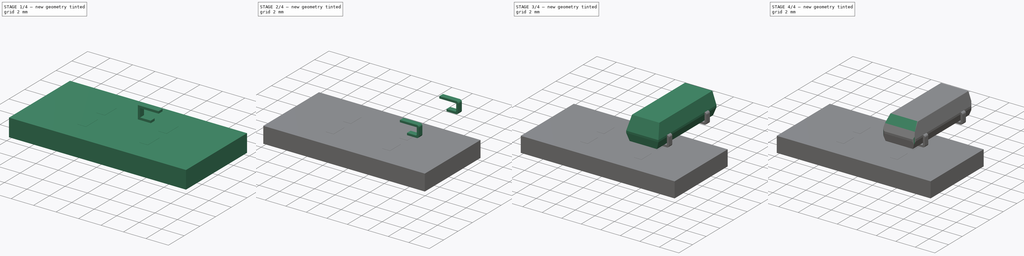
[diagram: build sequence overview — one tinted view per stage of 4, left to right]
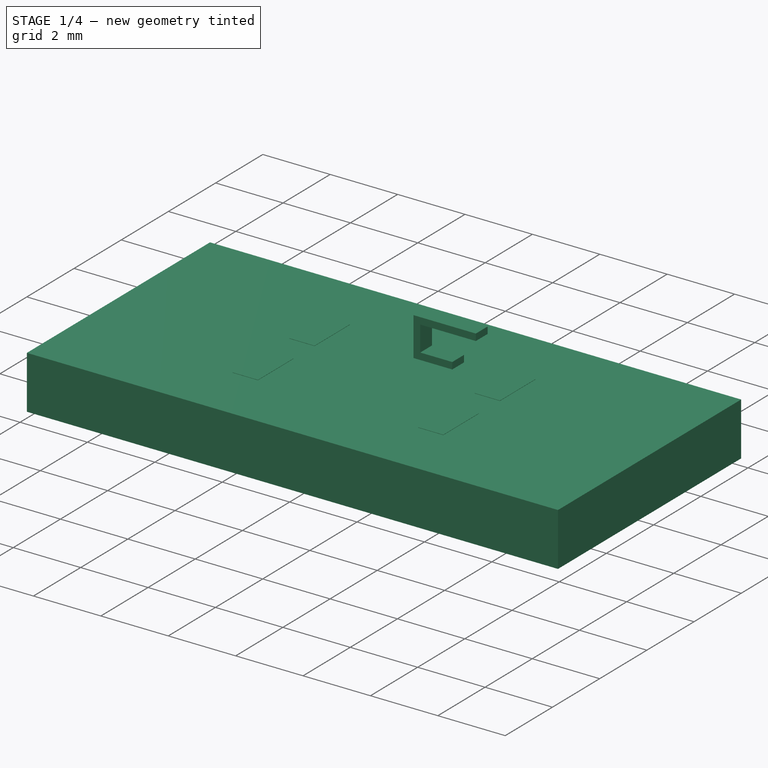
[diagram: stage 1 of 4 — iso view after this stage's code; geometry added in this stage tinted green]
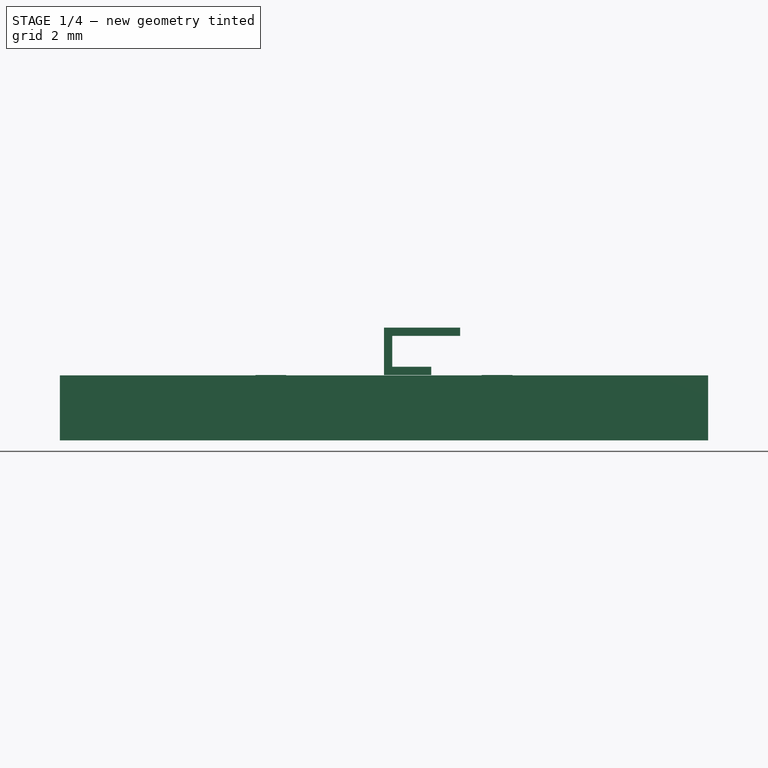
[diagram: stage 1 of 4 — front view after this stage's code; geometry added in this stage tinted green]
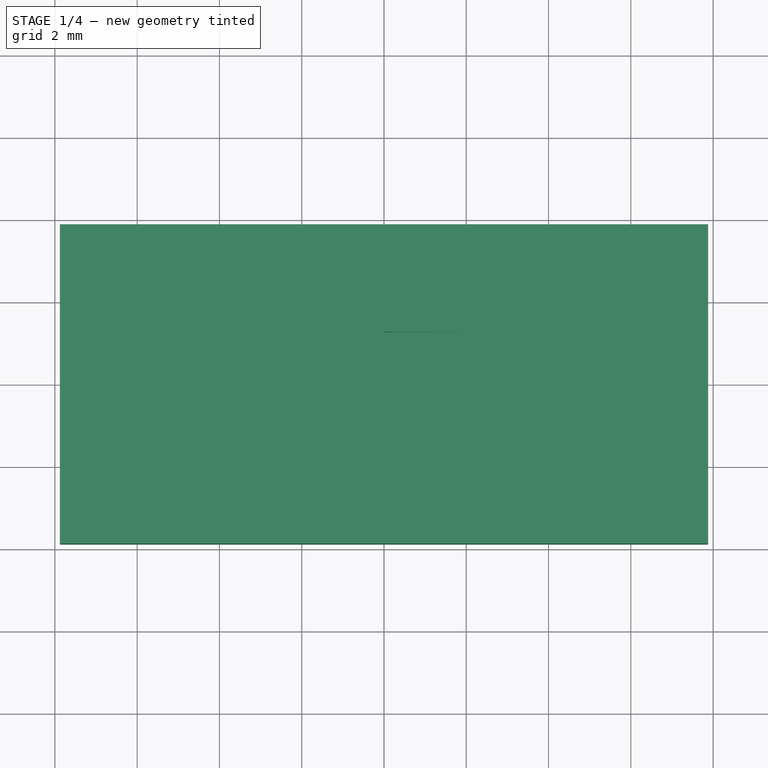
[diagram: stage 1 of 4 — top view after this stage's code; geometry added in this stage tinted green]
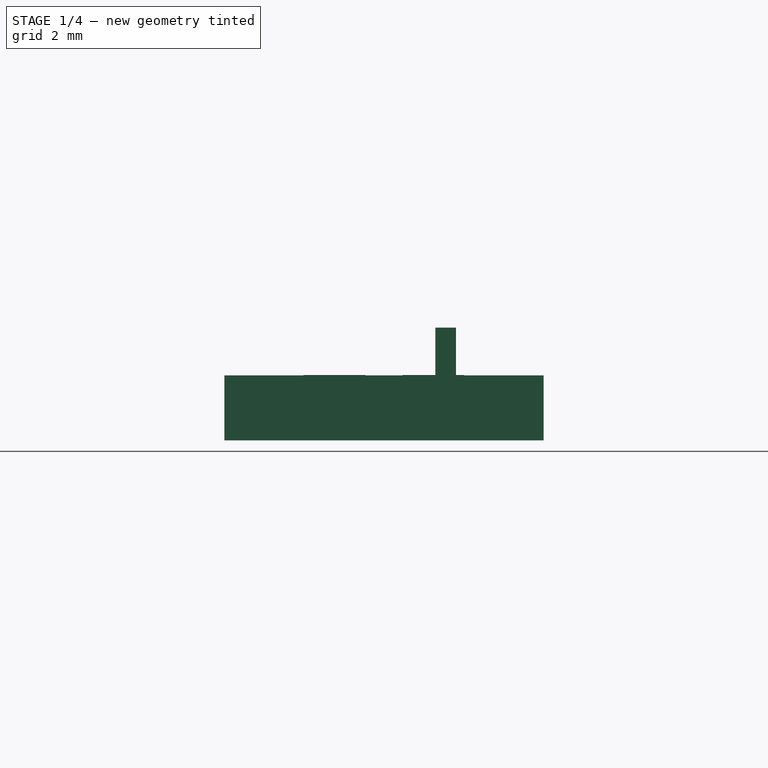
[diagram: stage 1 of 4 — right view after this stage's code; geometry added in this stage tinted green]
FCSTD DOCUMENT  (FreeCAD 0.19R24276 (Git))
Label: Oscillator_SMD_SeikoEpson_SPT2AF
License: All rights reserved
LicenseURL: http://en.wikipedia.org/wiki/All_rights_reserved
objects: Part::FeaturePython×6, Part::Fillet×3, Sketcher::SketchObject×2, Part::Chamfer×2, PartDesign::Pad×1, PartDesign::Body×1, Part::Extrusion×1, Part::Mirroring×1, App::DocumentObjectGroup×1, Part::Feature×1
note: 19 computed .brp shape members not serialized (recipe doc carries the construction recipe); baked Part::Feature solids carry a one-line shape summary decoded from their .brp

FEATURE [Sketcher::SketchObject] Sketch001  label="Sketch_pin"
  AttachmentOffset = pos=(0,0,-1.5) rot=(0,0,1;0rad)
  FullyConstrained = false
  MapMode = 5
  Placement = pos=(0,1.5,3e-16) rot=(1,0,0;1.5708rad)
  Support = -> [XZ_Plane]
  sketch-geometry (8):
    g0: LineSegment StartX=0 StartY=1.15 StartZ=0 EndX=1.85 EndY=1.15 EndZ=0
    g1: LineSegment StartX=0 StartY=1.15 StartZ=0 EndX=0 EndY=0 EndZ=0
    g2: LineSegment StartX=0 StartY=0 StartZ=0 EndX=1.15 EndY=0 EndZ=0
    g3: LineSegment StartX=1.15 StartY=0 StartZ=0 EndX=1.15 EndY=0.2 EndZ=0
    g4: LineSegment StartX=1.15 StartY=0.2 StartZ=0 EndX=0.2 EndY=0.2 EndZ=0
    g5: LineSegment StartX=0.2 StartY=0.2 StartZ=0 EndX=0.2 EndY=0.95 EndZ=0
    g6: LineSegment StartX=0.2 StartY=0.95 StartZ=0 EndX=1.85 EndY=0.95 EndZ=0
    g7: LineSegment StartX=1.85 StartY=0.95 StartZ=0 EndX=1.85 EndY=1.15 EndZ=0
  constraints (23):
    c: PointOnObject(g0,g-2)
    c: Horizontal(g0)
    c: Coincident(g1,g0)
    c: Coincident(g1,g-1)
    c: Coincident(g2,g1)
    c: PointOnObject(g2,g-1)
    c: Vertical(g3)
    c: Coincident(g4,g3)
    c: Horizontal(g4)
    c: Coincident(g5,g4)
    c: Vertical(g5)
    c: Horizontal(g6)
    c: Coincident(g7,g6)
    c: Coincident(g7,g0)
    c: Vertical(g7)
    c: DistanceY(g3,g3) = 0.2
    c: Coincident(g6,g5)
    c: DistanceX(g1,g5) = 0.2
    c: DistanceY(g7,g7) = 0.2
    c: DistanceX(g0,g0) = 1.85
    c: Coincident(g2,g3)
    c: DistanceX(g2,g2) = 1.15
    c: DistanceY(g1,g1) = 1.15
FEATURE [PartDesign::Body] Body
  Group = -> [Sketch,Pad,Sketch001]
  Origin = -> Origin
  Tip = -> Pad
FEATURE [Part::Extrusion] Extrude  label="Extrude_pin"
  Base = -> Sketch001
  Dir = (0,-1,-2e-16)
  DirMode = 2
  FaceMakerClass = Part::FaceMakerBullseye
  LengthFwd = 0.5
  LengthRev = 0
  Solid = true
  Symmetric = true
FEATURE [Part::FeaturePython] FCrtYd_lines  label="FCrtYd"  # a2plus imported part (geometry in sourceFile) (typed FeaturePython)
  fixedPosition = true
FEATURE [Part::FeaturePython] FFab_lines  label="FFab"  # a2plus imported part (geometry in sourceFile) (typed FeaturePython)
  fixedPosition = true
FEATURE [Part::FeaturePython] Filk_lines  label="FrontSilk"  # a2plus imported part (geometry in sourceFile) (typed FeaturePython)
  fixedPosition = true
FEATURE [Part::FeaturePython] TopPads  # a2plus imported part (geometry in sourceFile) (typed FeaturePython)
  fixedPosition = true
FEATURE [Part::FeaturePython] newPCB  label="Pcb"  # a2plus imported part (geometry in sourceFile) (typed FeaturePython)
  fixedPosition = true
FEATURE [App::DocumentObjectGroup] _module_fp
  Group = -> [FCrtYd_lines,FFab_lines,Filk_lines,TopPads,newPCB]
FEATURE [Part::Feature] Shape  label="Oscillator_SMD_SeikoEpson_SPT2AF"
  shape: bbox 8.5 x 3.7 x 2.5 mm, 70 faces (baked)
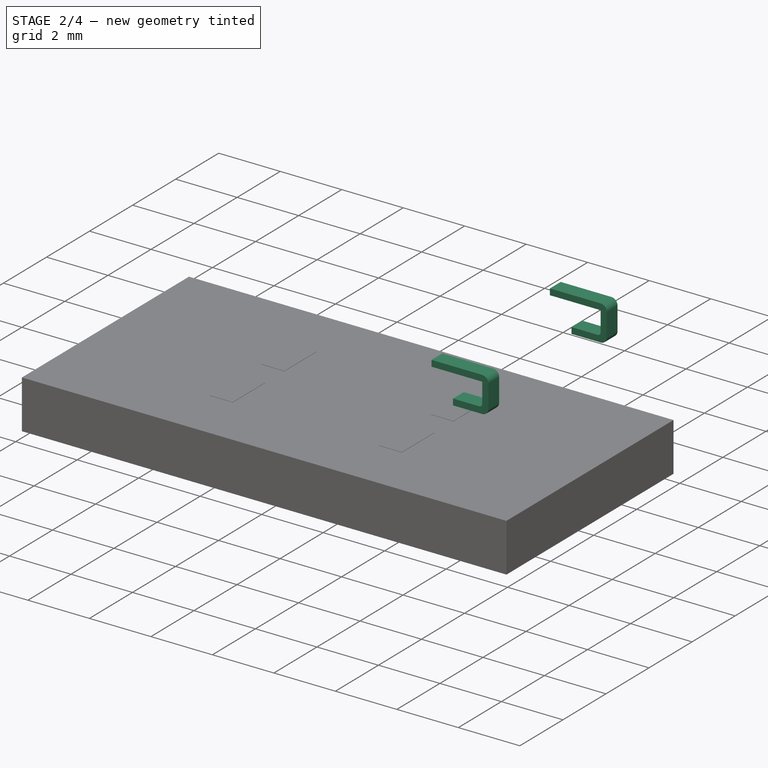
[diagram: stage 2 of 4 — iso view after this stage's code; geometry added in this stage tinted green]
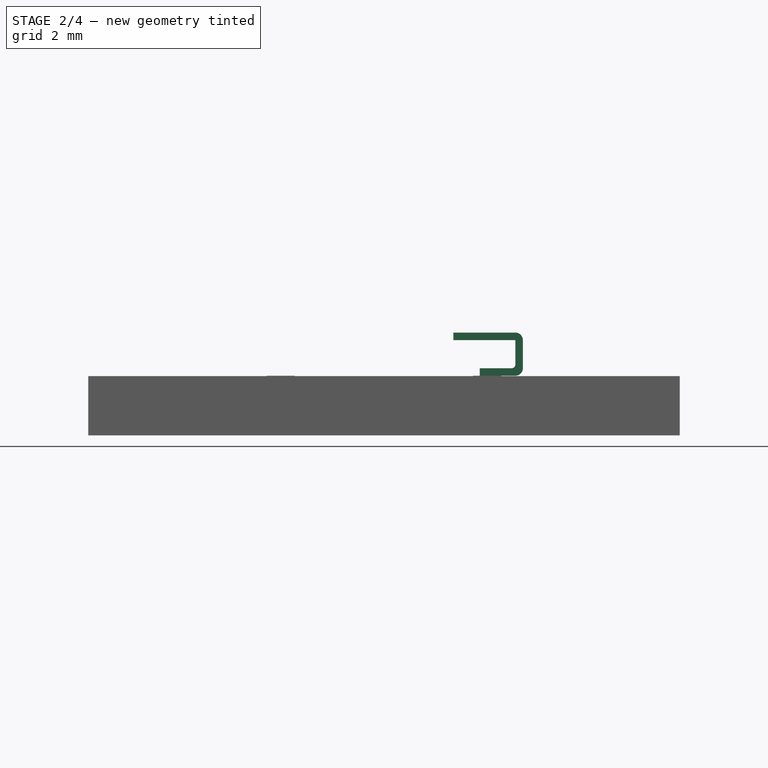
[diagram: stage 2 of 4 — front view after this stage's code; geometry added in this stage tinted green]
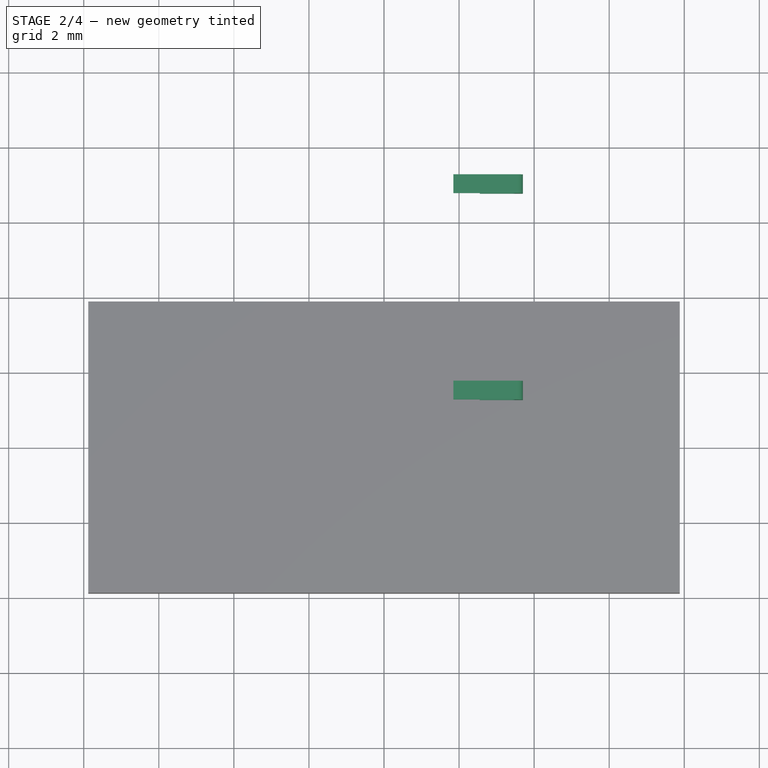
[diagram: stage 2 of 4 — top view after this stage's code; geometry added in this stage tinted green]
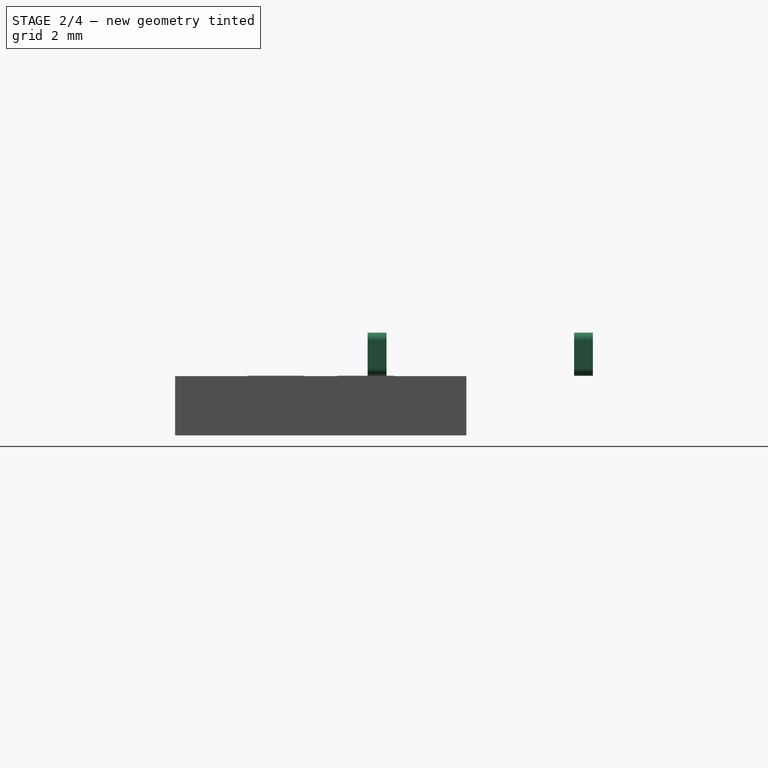
[diagram: stage 2 of 4 — right view after this stage's code; geometry added in this stage tinted green]
FEATURE [Part::Fillet] Fillet002  label="Fillet_pin"
  Base = -> Extrude
  Edges = 3 edges: [Edge1 r=0.2,Edge11 r=0.1,Edge20 r=0.2]
FEATURE [Part::FeaturePython] Array  label="Array_pin"  # Draft array (typed FeaturePython)
  Angle = 360
  ArrayType = 0
  Axis = (0,0,1)
  Base = -> Fillet002
  Center = (0,0,0)
  Fuse = false
  IntervalAxis = (0,0,0)
  IntervalX = (1,0,0)
  IntervalY = (0,5.5,0)
  IntervalZ = (0,0,1)
  NumberPolar = 1
  NumberX = 1
  NumberY = 2
  NumberZ = 1
FEATURE [Part::Mirroring] Part__Mirroring  label="Mirror_pins"
  Base = (1.78814e-07,4.25,0.575001)
  Normal = (1,0,-1.19209e-07)
  Placement = pos=(3.7,0,0) rot=(0,0,1;0rad)
  Source = -> Array
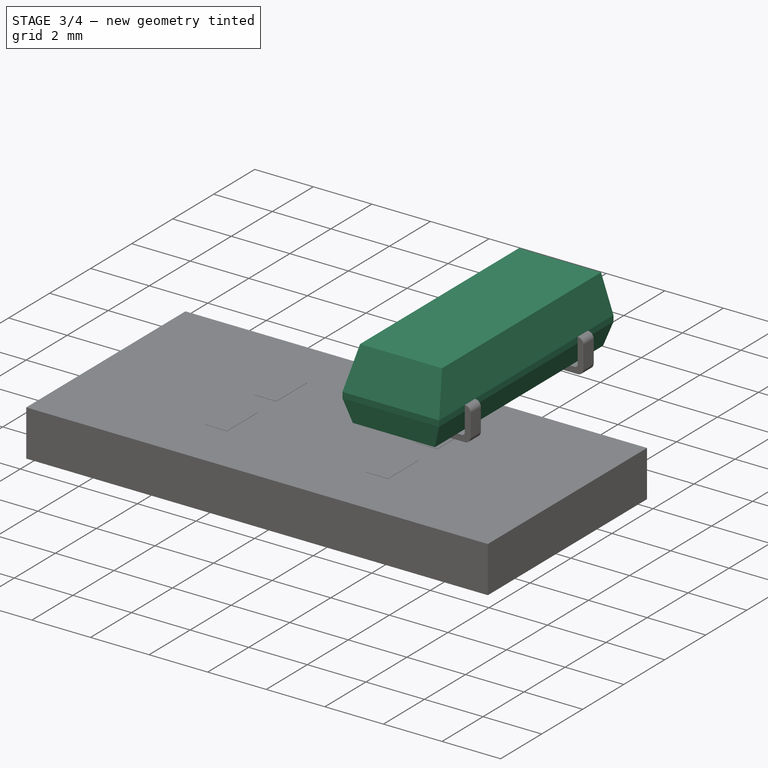
[diagram: stage 3 of 4 — iso view after this stage's code; geometry added in this stage tinted green]
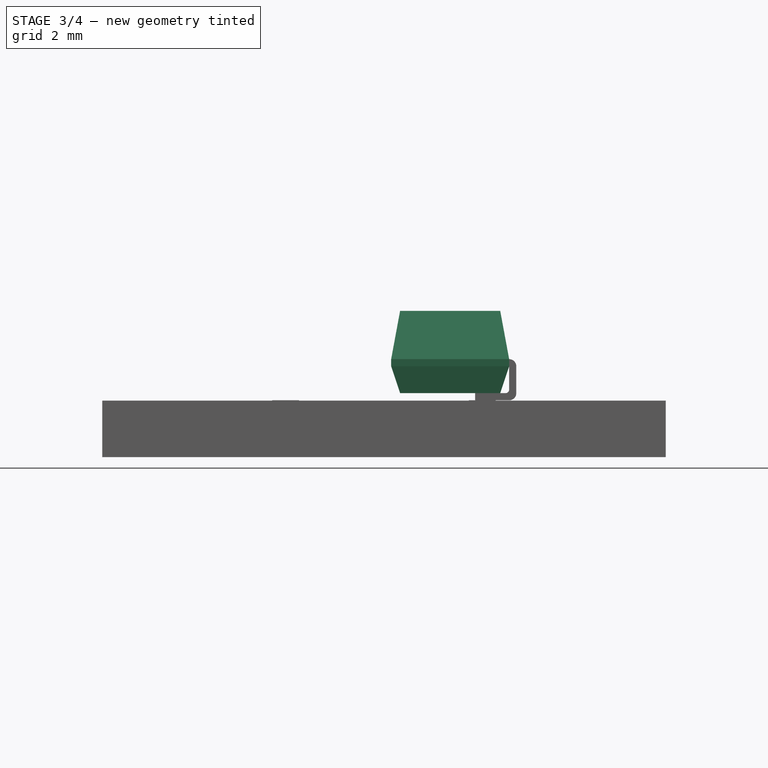
[diagram: stage 3 of 4 — front view after this stage's code; geometry added in this stage tinted green]
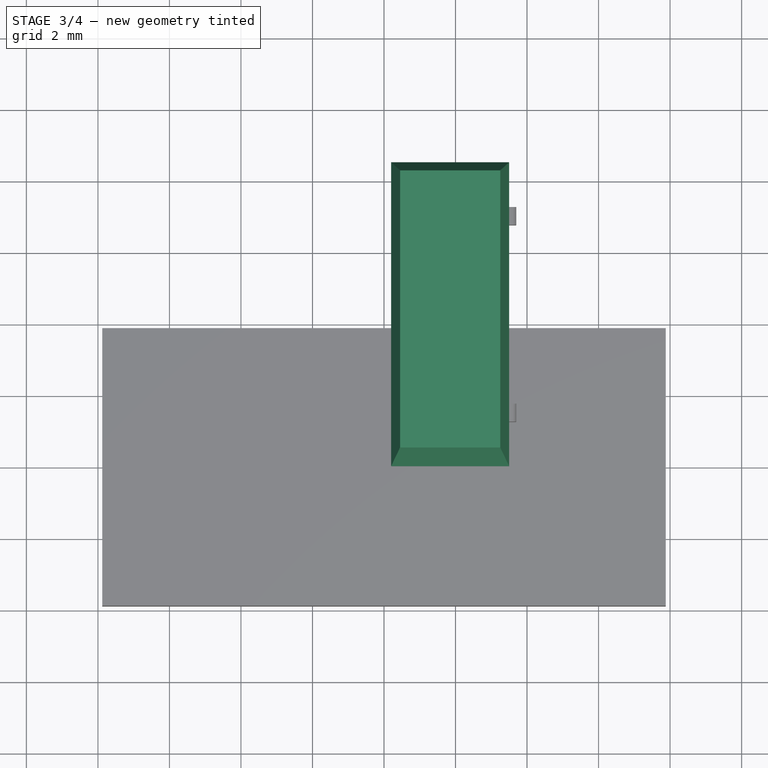
[diagram: stage 3 of 4 — top view after this stage's code; geometry added in this stage tinted green]
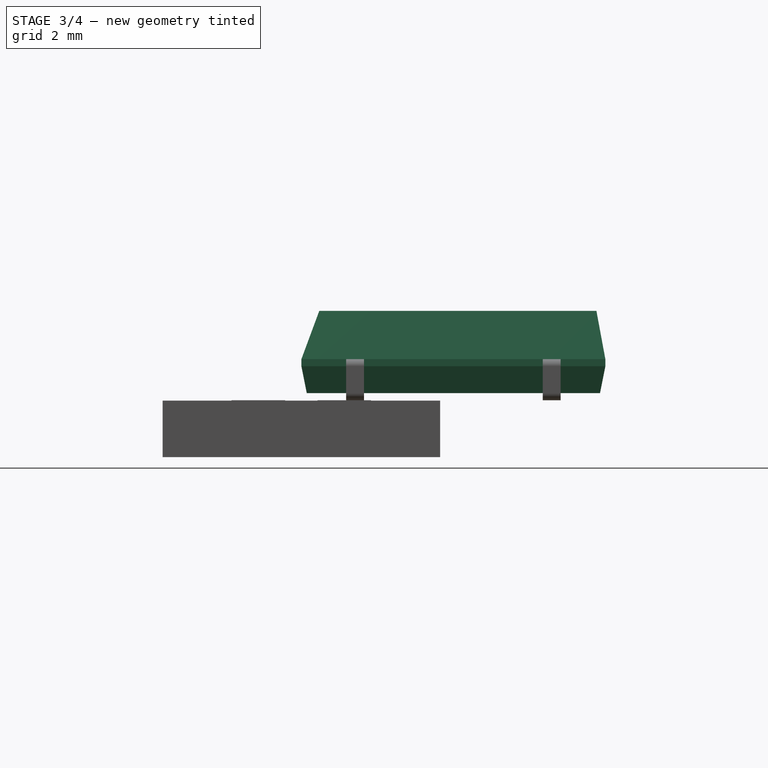
[diagram: stage 3 of 4 — right view after this stage's code; geometry added in this stage tinted green]
FEATURE [Sketcher::SketchObject] Sketch  label="Sketch_body"
  FullyConstrained = false
  MapMode = 5
  Placement = pos=(0,0,0) rot=(1,0,0;1.5708rad)
  Support = -> [XZ_Plane]
  sketch-geometry (4):
    g0: LineSegment StartX=0.2 StartY=2.5 StartZ=0 EndX=3.5 EndY=2.5 EndZ=0
    g1: LineSegment StartX=3.5 StartY=2.5 StartZ=0 EndX=3.5 EndY=0.2 EndZ=0
    g2: LineSegment StartX=3.5 StartY=0.2 StartZ=0 EndX=0.2 EndY=0.2 EndZ=0
    g3: LineSegment StartX=0.2 StartY=0.2 StartZ=0 EndX=0.2 EndY=2.5 EndZ=0
  constraints (12):
    c: Coincident(g0,g1)
    c: Coincident(g1,g2)
    c: Coincident(g2,g3)
    c: Coincident(g3,g0)
    c: Horizontal(g0)
    c: Horizontal(g2)
    c: Vertical(g1)
    c: Vertical(g3)
    c: DistanceX(g0,g0) = 3.3
    c: DistanceY(g1,g1) = 2.3
    c: DistanceY(g-1,g1) = 0.2
    c: DistanceX(g-1,g2) = 0.2
FEATURE [PartDesign::Pad] Pad  label="Pad_body"
  AllowMultiFace = false
  Direction = (1,1,1)
  Length = 8.5
  Length2 = 100
  Placement = pos=(0,0,0) rot=(1,0,0;1.5708rad)
  Profile = -> Sketch
  Reversed = true
  Type = 0
FEATURE [Part::Chamfer] Chamfer  label="Chamfer_body"
  Base = -> Pad
  Edges = 8 edges: [Edge1 r1=0.25 r2=1.35,Edge2 r1=0.25 r2=1.35,Edge3 r1=0.5 r2=1.35,Edge4 r1=0.25 r2=1.35,Edge5 r1=0.75 r2=0.25,Edge8 r1=0.25 r2=0.75,Edge9 r1=0.15 r2=0.75,Edge10 r1=0.15 r2=0.75]
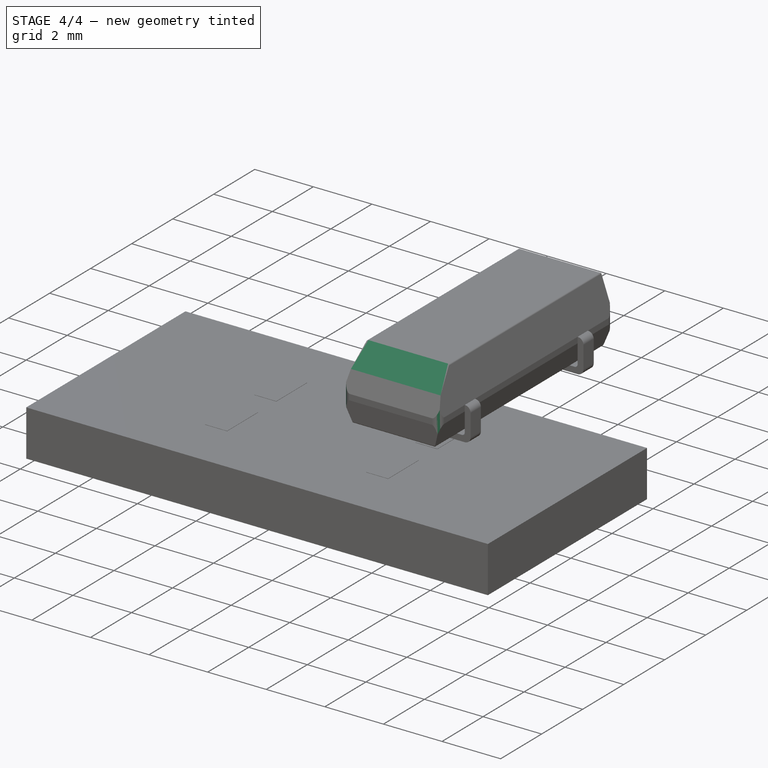
[diagram: stage 4 of 4 — iso view after this stage's code; geometry added in this stage tinted green]
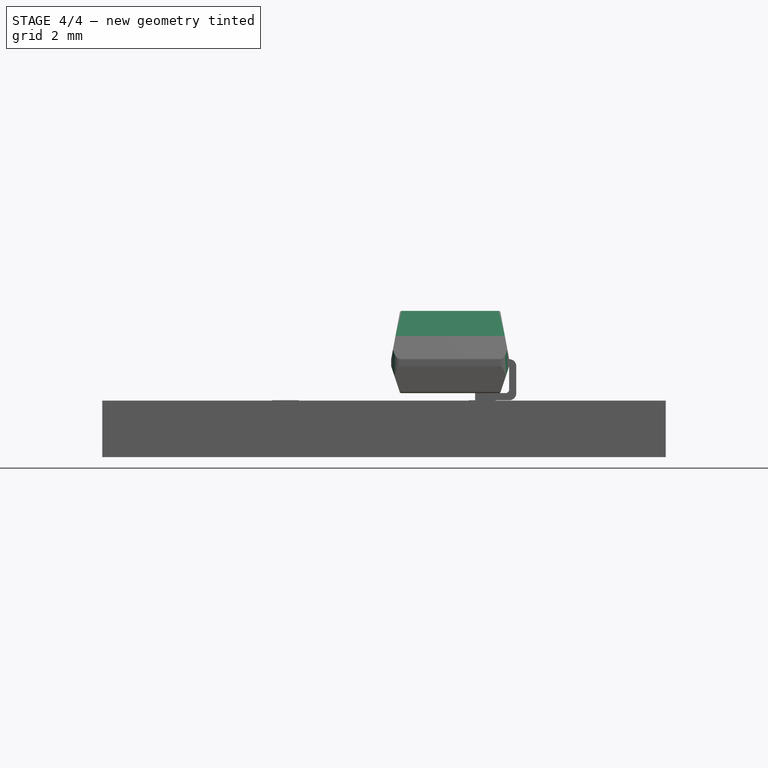
[diagram: stage 4 of 4 — front view after this stage's code; geometry added in this stage tinted green]
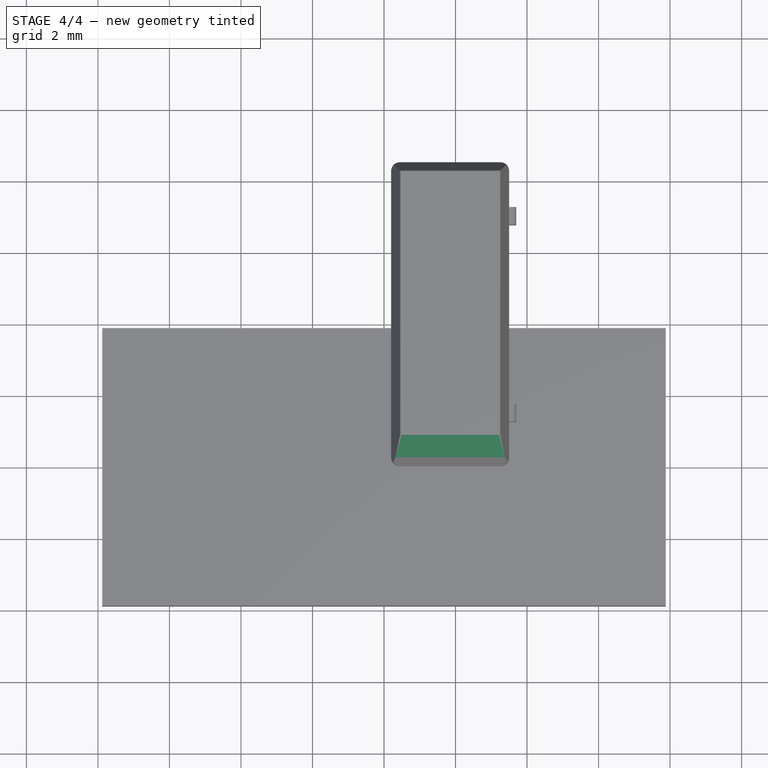
[diagram: stage 4 of 4 — top view after this stage's code; geometry added in this stage tinted green]
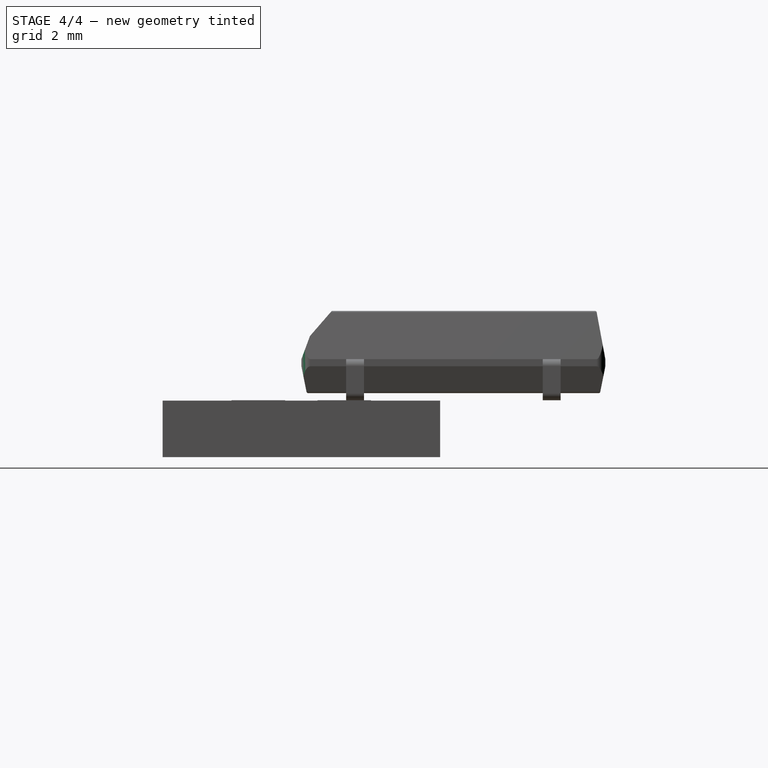
[diagram: stage 4 of 4 — right view after this stage's code; geometry added in this stage tinted green]
FEATURE [Part::Chamfer] Chamfer001  label="Chamfer_body001"
  Base = -> Chamfer
  Edges = 1 edges: [Edge2 r1=0.35 r2=0.75]
FEATURE [Part::Fillet] Fillet  label="Fillet_body"
  Base = -> Chamfer001
  Edges = 4 edges r=0.25: [Edge16,Edge18,Edge19,Edge21]
FEATURE [Part::Fillet] Fillet003  label="Fillet_body001"
  Base = -> Fillet
  Edges = 7 edges r=0.05: [Edge5,Edge21,Edge22,Edge39,Edge42,Edge45,Edge51]
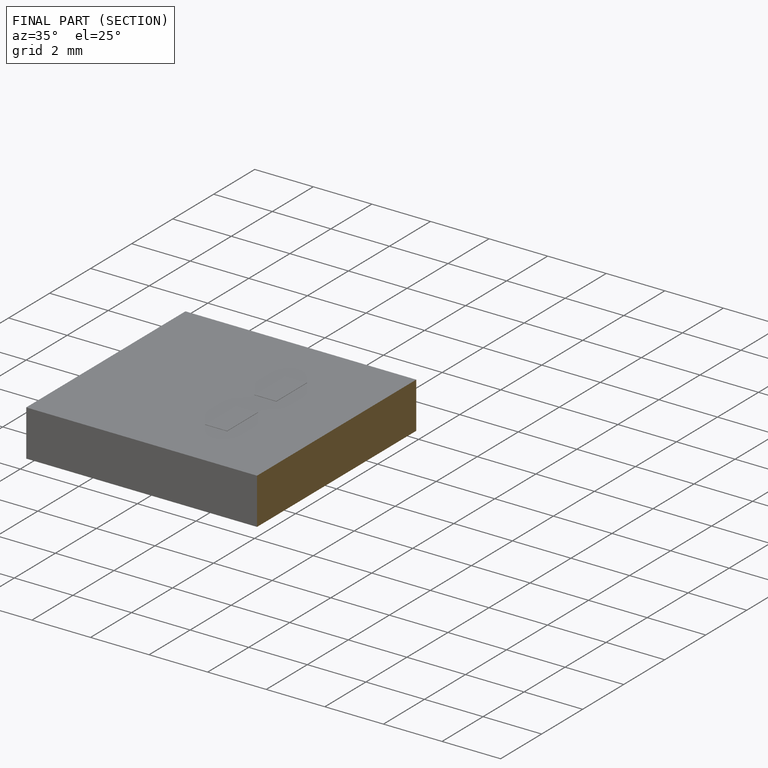
[diagram: finished part — half-section view (interior)]
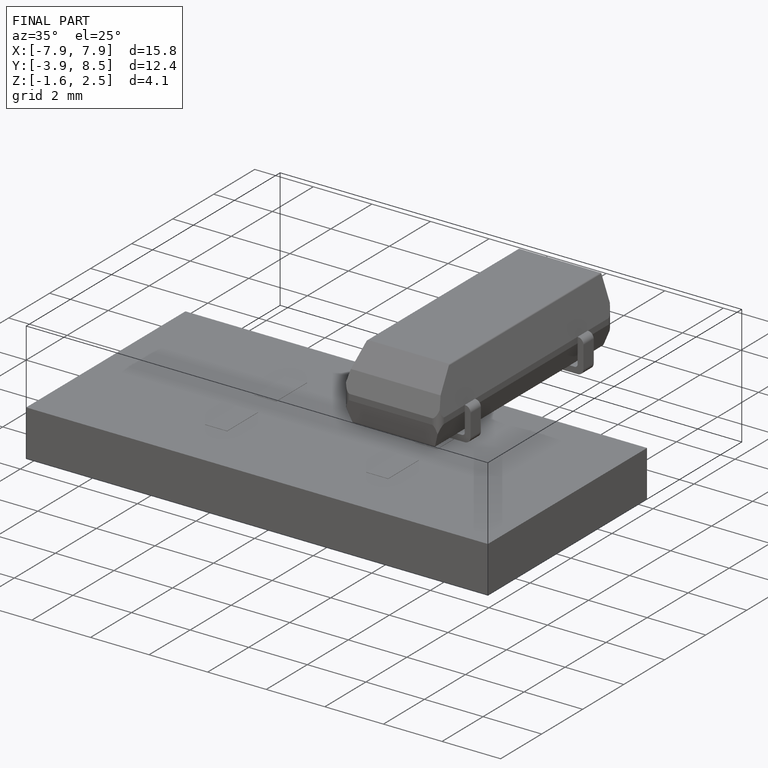
[diagram: finished part — iso view with bounding-box wireframe]
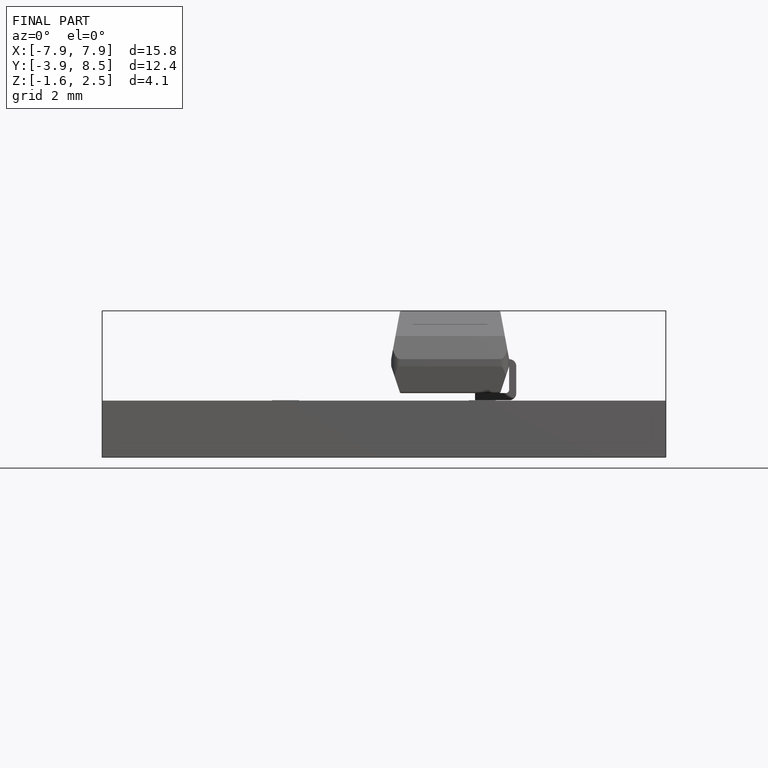
[diagram: finished part — front view with bounding-box wireframe]
